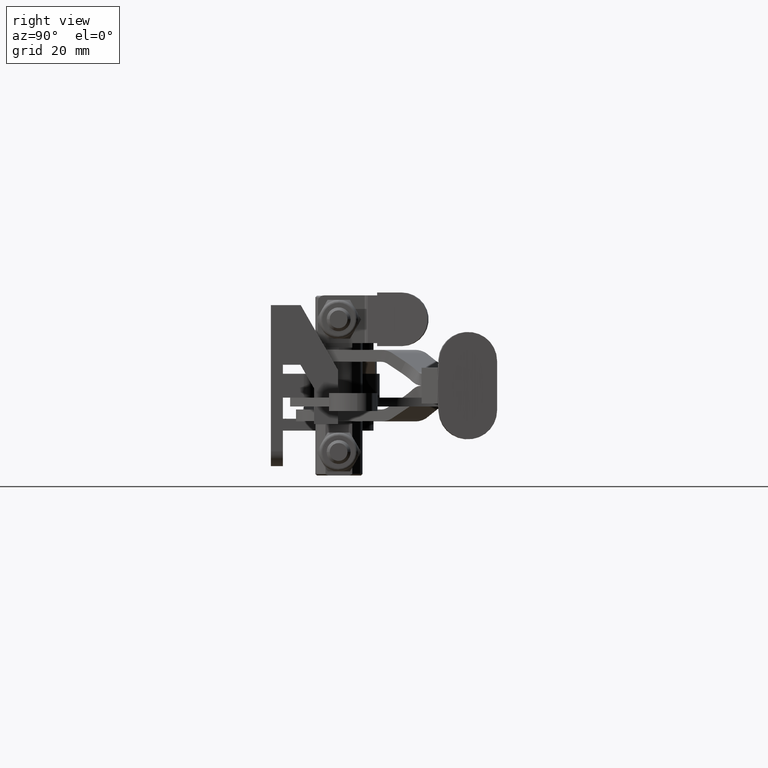
[diagram: clean part render]
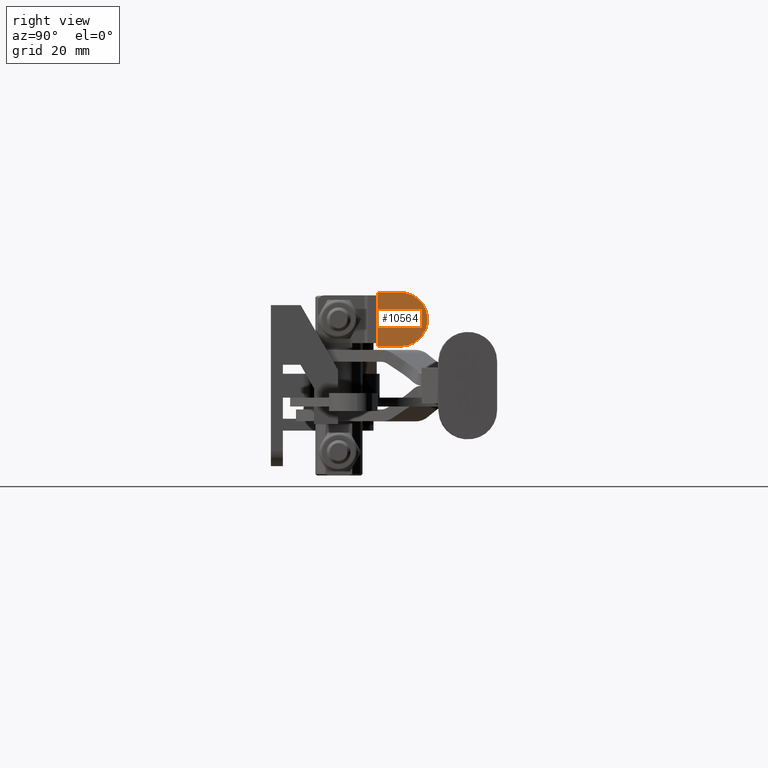
[diagram: same view with one face highlighted and labeled with its STEP entity id]
A machine part, right view. The second image highlights one B-rep face of the part: STEP entity #10564.
In plain terms, the highlighted planar face has unit normal (-0.9956, 0.0936, -0).
Its self-contained STEP definition (entity closure, byte-faithful):
#328 = AXIS2_PLACEMENT_3D ( 'NONE', #5861, #3641, #5846 ) ;
#1517 = VECTOR ( 'NONE', #9618, 1000.000000000000100 ) ;
#2130 = EDGE_LOOP ( 'NONE', ( #7218, #7008, #4296, #4886 ) ) ;
#2348 = LINE ( 'NONE', #9143, #11376 ) ;
#2853 = VERTEX_POINT ( 'NONE', #15251 ) ;
#3641 = DIRECTION ( 'NONE',  ( -0.9956138793327825600, 0.09355748649855766300, -2.433681841097889400E-016 ) ) ;
#3701 = LINE ( 'NONE', #13533, #6454 ) ;
#4296 = ORIENTED_EDGE ( 'NONE', *, *, #13697, .F. ) ;
#4886 = ORIENTED_EDGE ( 'NONE', *, *, #14159, .F. ) ;
#5147 = FACE_OUTER_BOUND ( 'NONE', #2130, .T. ) ;
#5846 = DIRECTION ( 'NONE',  ( -0.09355748649855773200, -0.9956138793327823400, 0.0000000000000000000 ) ) ;
#5861 = CARTESIAN_POINT ( 'NONE',  ( 72.67529716192221700, 43.58313554898833800, 22.24999999999999600 ) ) ;
#6196 = DIRECTION ( 'NONE',  ( -0.09355748649855766300, -0.9956138793327824500, -4.045291253452295300E-017 ) ) ;
#6198 = DIRECTION ( 'NONE',  ( -0.9956138793327824500, 0.09355748649855766300, -2.433681841097888900E-016 ) ) ;
#6226 = CARTESIAN_POINT ( 'NONE',  ( 72.67529716192221700, 43.58313554898833800, 22.24999999999999600 ) ) ;
#6454 = VECTOR ( 'NONE', #13423, 1000.000000000000000 ) ;
#7008 = ORIENTED_EDGE ( 'NONE', *, *, #11334, .F. ) ;
#7196 = CARTESIAN_POINT ( 'NONE',  ( 72.67529716192221700, 43.58313554898833800, 31.24999999999999300 ) ) ;
#7218 = ORIENTED_EDGE ( 'NONE', *, *, #11523, .F. ) ;
#7725 = LINE ( 'NONE', #9627, #1517 ) ;
#8385 = VERTEX_POINT ( 'NONE', #7196 ) ;
#8477 = PLANE ( 'NONE',  #14211 ) ;
#9089 = DIRECTION ( 'NONE',  ( 0.09355748649855771800, 0.9956138793327824500, -1.763875219625778800E-016 ) ) ;
#9143 = CARTESIAN_POINT ( 'NONE',  ( 72.67529716192221700, 43.58313554898833800, 31.24999999999999300 ) ) ;
#9618 = DIRECTION ( 'NONE',  ( -0.09355748649855771800, -0.9956138793327824500, 1.763875219625778800E-016 ) ) ;
#9627 = CARTESIAN_POINT ( 'NONE',  ( 72.67529716192221700, 43.58313554898833800, 13.24999999999999600 ) ) ;
#10408 = VERTEX_POINT ( 'NONE', #12547 ) ;
#10458 = CIRCLE ( 'NONE', #328, 9.000000000000003600 ) ;
#10564 = ADVANCED_FACE ( 'NONE', ( #5147 ), #8477, .F. ) ;
#11114 = VERTEX_POINT ( 'NONE', #12653 ) ;
#11334 = EDGE_CURVE ( 'NONE', #11114, #8385, #2348, .T. ) ;
#11376 = VECTOR ( 'NONE', #9089, 1000.000000000000100 ) ;
#11523 = EDGE_CURVE ( 'NONE', #8385, #10408, #10458, .T. ) ;
#12547 = CARTESIAN_POINT ( 'NONE',  ( 72.67529716192221700, 43.58313554898833800, 13.24999999999999600 ) ) ;
#12653 = CARTESIAN_POINT ( 'NONE',  ( 71.92683726993375600, 35.61822451432607300, 31.24999999999999600 ) ) ;
#13423 = DIRECTION ( 'NONE',  ( -2.460854147059977600E-016, -1.750656557977605800E-017, 1.000000000000000000 ) ) ;
#13533 = CARTESIAN_POINT ( 'NONE',  ( 71.92683726993375600, 35.61822451432607300, 13.24999999999999800 ) ) ;
#13697 = EDGE_CURVE ( 'NONE', #2853, #11114, #3701, .T. ) ;
#14159 = EDGE_CURVE ( 'NONE', #10408, #2853, #7725, .T. ) ;
#14211 = AXIS2_PLACEMENT_3D ( 'NONE', #6226, #6198, #6196 ) ;
#15251 = CARTESIAN_POINT ( 'NONE',  ( 71.92683726993375600, 35.61822451432607300, 13.24999999999999800 ) ) ;